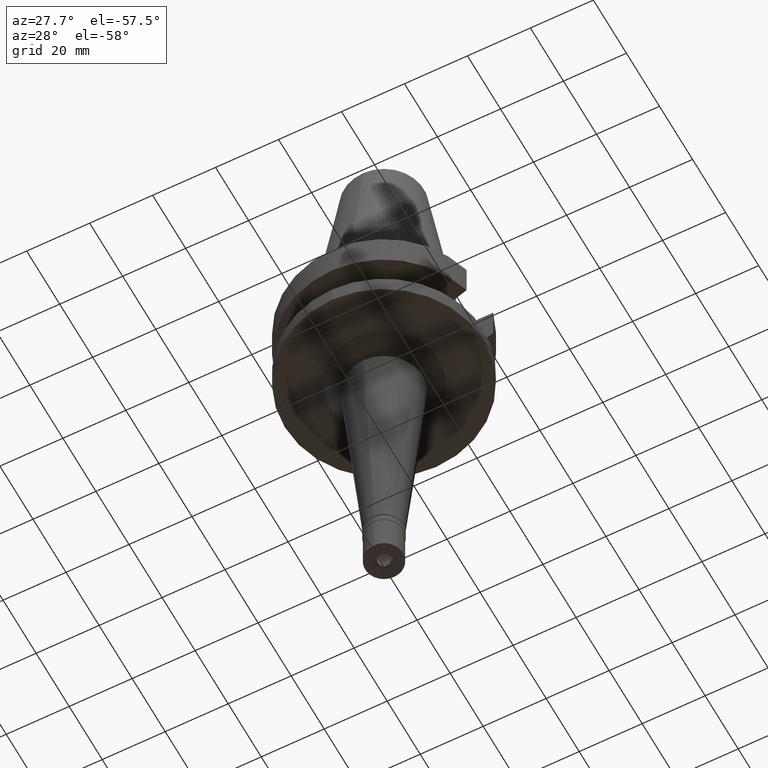
[diagram: clean part render]
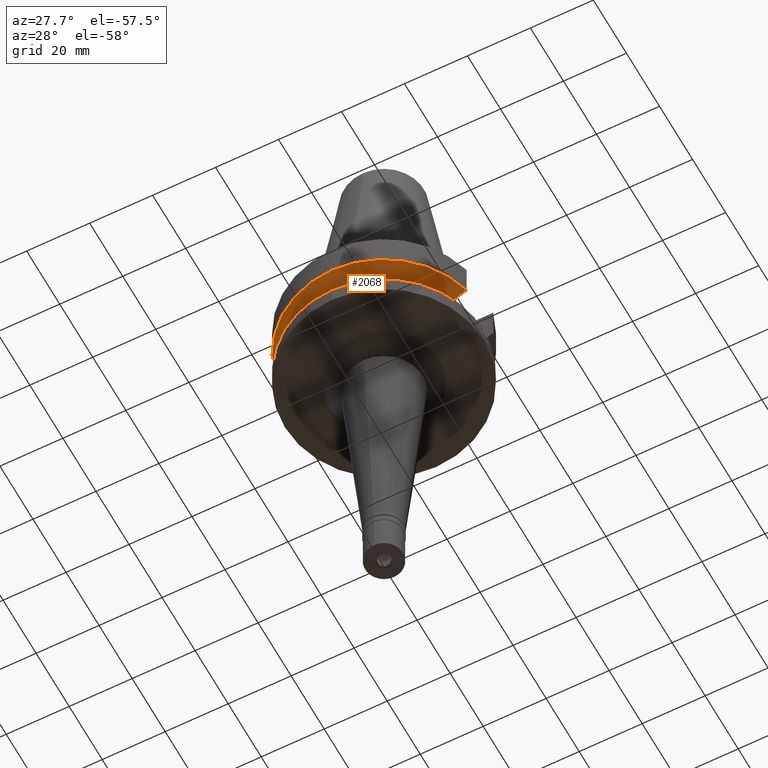
[diagram: same view with one face highlighted and labeled with its STEP entity id]
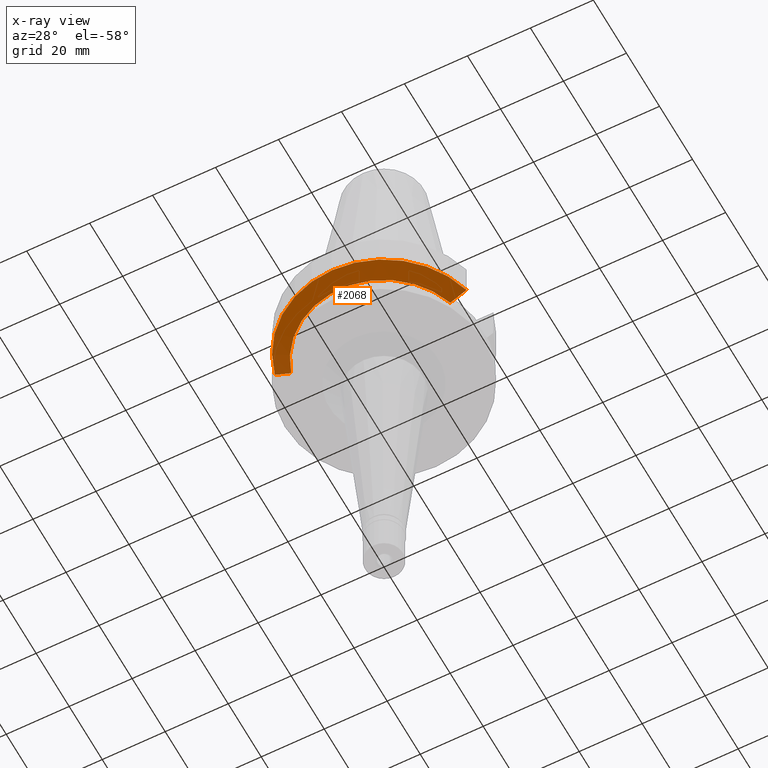
[diagram: x-ray of the same camera — body ghosted, the highlighted face saturated]
A machine part, auxiliary view. The second image highlights one B-rep face of the part: STEP entity #2068.
The next image is the same camera in x-ray: the body ghosted, the highlighted face saturated — about 0% of this face is hidden behind the body in this view.
In plain terms, the highlighted conical surface has half-angle 60 deg.
Its self-contained STEP definition (entity closure, byte-faithful):
#21 = VERTEX_POINT ( 'NONE', #197 ) ;
#197 = CARTESIAN_POINT ( 'NONE',  ( -25.24772413126000359, -8.049995415639999763, -14.45229202910000055 ) ) ;
#203 = VERTEX_POINT ( 'NONE', #2379 ) ;
#226 = ORIENTED_EDGE ( 'NONE', *, *, #272, .F. ) ;
#261 = CARTESIAN_POINT ( 'NONE',  ( 0.0000000000000000000, 1.065333950388000029E-14, -11.56550565266999975 ) ) ;
#272 = EDGE_CURVE ( 'NONE', #359, #2005, #990, .T. ) ;
#359 = VERTEX_POINT ( 'NONE', #2227 ) ;
#644 = CARTESIAN_POINT ( 'NONE',  ( -28.57292328684798477, -8.049998557020543899, -12.61549605729713086 ) ) ;
#726 = CARTESIAN_POINT ( 'NONE',  ( 28.57294950172530790, -8.050008281445975911, -12.61547991167495120 ) ) ;
#917 = CARTESIAN_POINT ( 'NONE',  ( 0.0000000000000000000, 1.065333950388000029E-14, -14.45225699861000024 ) ) ;
#959 = EDGE_CURVE ( 'NONE', #203, #21, #2213, .T. ) ;
#990 = CIRCLE ( 'NONE', #2786, 31.50000000000000000 ) ;
#1011 = DIRECTION ( 'NONE',  ( 0.0000000000000000000, 0.0000000000000000000, 1.000000000000000000 ) ) ;
#1115 = DIRECTION ( 'NONE',  ( 0.9527442516822307583, -0.3037735849057093818, 0.0000000000000000000 ) ) ;
#1152 = ORIENTED_EDGE ( 'NONE', *, *, #959, .F. ) ;
#1219 = ORIENTED_EDGE ( 'NONE', *, *, #2209, .T. ) ;
#1394 = CARTESIAN_POINT ( 'NONE',  ( 30.45402272279000044, -8.049999999999000622, -11.56550565266999975 ) ) ;
#1408 = AXIS2_PLACEMENT_3D ( 'NONE', #2394, #1011, #1935 ) ;
#1526 = AXIS2_PLACEMENT_3D ( 'NONE', #917, #2946, #1115 ) ;
#1539 = EDGE_LOOP ( 'NONE', ( #2034, #1152, #1219, #226 ) ) ;
#1763 = CARTESIAN_POINT ( 'NONE',  ( -30.45402291362000113, -8.049999278039999595, -11.56551215521000131 ) ) ;
#1888 = B_SPLINE_CURVE_WITH_KNOTS ( 'NONE', 3,
 ( #2208, #1974, #726, #2323 ),
 .UNSPECIFIED., .F., .F.,
 ( 4, 4 ),
 ( 0.0000000000000000000, 1.000000000000000000 ),
 .UNSPECIFIED. ) ;
#1895 = CONICAL_SURFACE ( 'NONE', #1408, 29.00000000000000000, 1.047197551196400456 ) ;
#1935 = DIRECTION ( 'NONE',  ( 0.0000000000000000000, 1.000000000000000000, 0.0000000000000000000 ) ) ;
#1974 = CARTESIAN_POINT ( 'NONE',  ( 26.83757728703244894, -8.050003176467452448, -13.57772966041586038 ) ) ;
#2005 = VERTEX_POINT ( 'NONE', #1394 ) ;
#2034 = ORIENTED_EDGE ( 'NONE', *, *, #2807, .T. ) ;
#2068 = ADVANCED_FACE ( 'NONE', ( #2844 ), #1895, .T. ) ;
#2208 = CARTESIAN_POINT ( 'NONE',  ( 25.24772266958000344, -8.050000000000000711, -14.45225699861000024 ) ) ;
#2209 = EDGE_CURVE ( 'NONE', #203, #2005, #1888, .T. ) ;
#2213 = CIRCLE ( 'NONE', #1526, 26.50000000000000711 ) ;
#2227 = CARTESIAN_POINT ( 'NONE',  ( -30.45402291362000113, -8.049999278039999595, -11.56551215521000131 ) ) ;
#2323 = CARTESIAN_POINT ( 'NONE',  ( 30.45402272279000044, -8.049999999999000622, -11.56550565266999975 ) ) ;
#2379 = CARTESIAN_POINT ( 'NONE',  ( 25.24772266958000344, -8.050000000000000711, -14.45225699861000024 ) ) ;
#2394 = CARTESIAN_POINT ( 'NONE',  ( 0.0000000000000000000, 1.065333950388000029E-14, -13.00888132564000088 ) ) ;
#2452 = CARTESIAN_POINT ( 'NONE',  ( -25.24772413126000359, -8.049995415639999763, -14.45229202910000055 ) ) ;
#2455 = B_SPLINE_CURVE_WITH_KNOTS ( 'NONE', 3,
 ( #1763, #644, #2464, #2452 ),
 .UNSPECIFIED., .F., .F.,
 ( 4, 4 ),
 ( 0.0000000000000000000, 1.000000000000000000 ),
 .UNSPECIFIED. ) ;
#2464 = CARTESIAN_POINT ( 'NONE',  ( -26.83754615613649719, -8.049990821127069651, -13.57774888327463181 ) ) ;
#2585 = DIRECTION ( 'NONE',  ( 0.0000000000000000000, 0.0000000000000000000, 1.000000000000000000 ) ) ;
#2785 = DIRECTION ( 'NONE',  ( 0.0000000000000000000, -1.000000000000000000, 0.0000000000000000000 ) ) ;
#2786 = AXIS2_PLACEMENT_3D ( 'NONE', #261, #2585, #2785 ) ;
#2807 = EDGE_CURVE ( 'NONE', #359, #21, #2455, .T. ) ;
#2844 = FACE_OUTER_BOUND ( 'NONE', #1539, .T. ) ;
#2946 = DIRECTION ( 'NONE',  ( 0.0000000000000000000, 0.0000000000000000000, -1.000000000000000000 ) ) ;